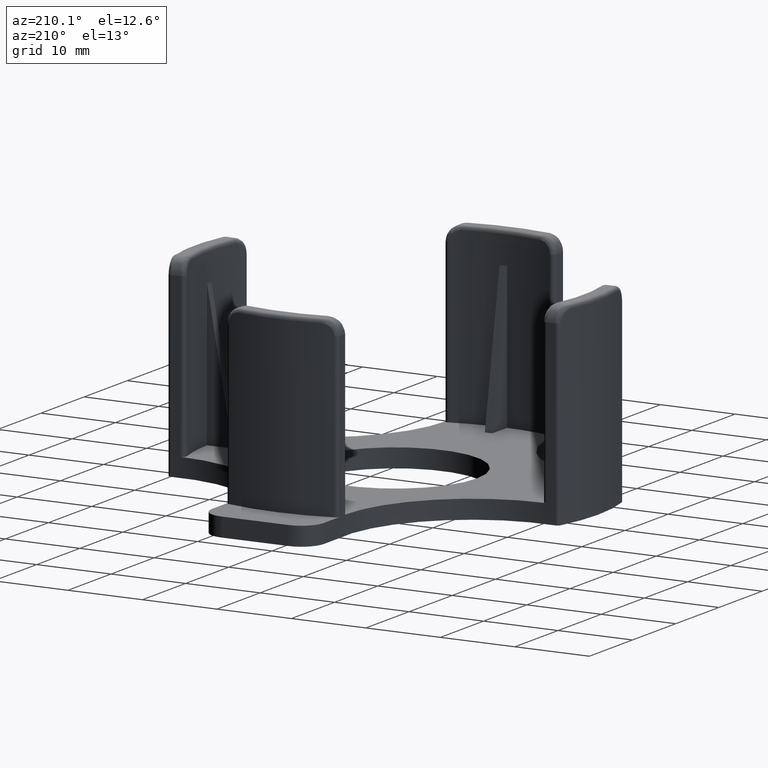
[diagram: clean part render]
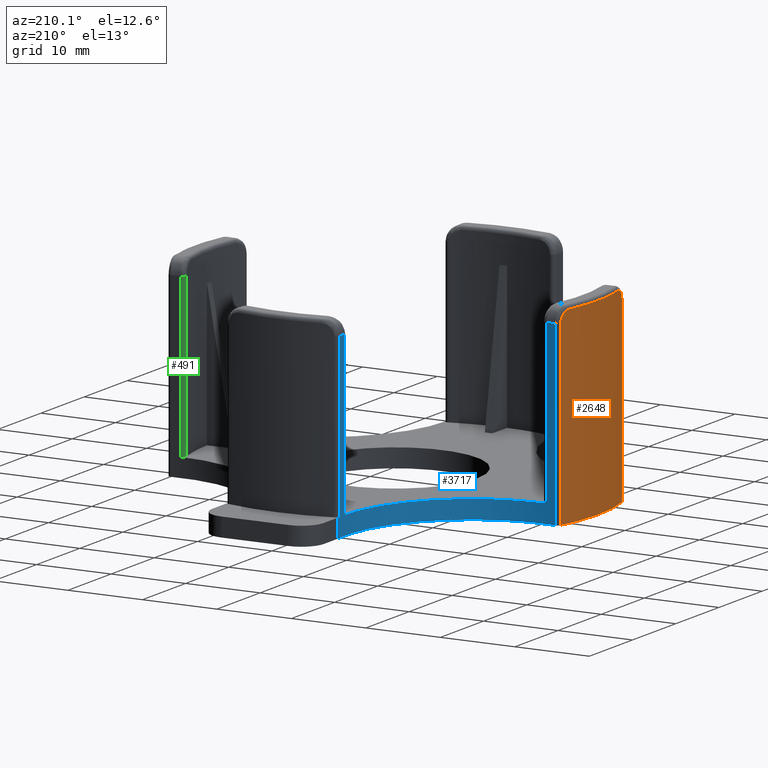
[diagram: same view with three faces highlighted in distinct colors, each labeled with its STEP entity id]
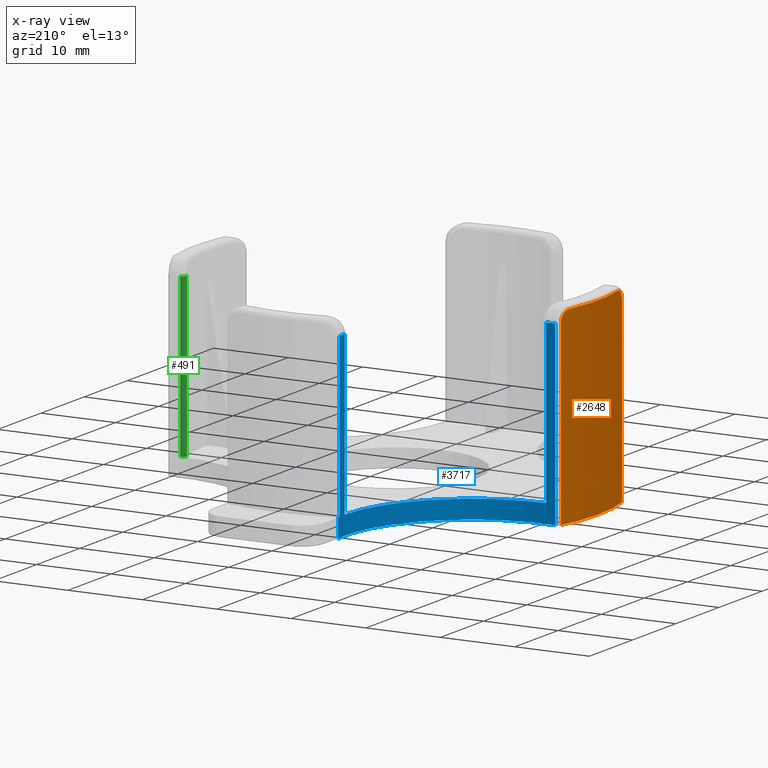
[diagram: x-ray of the same camera — body ghosted, the three highlighted faces saturated]
A machine part, auxiliary view with three faces highlighted in distinct colors.
The next image is the same camera in x-ray (body ghosted, the three faces saturated) — at least one of them is partly hidden behind the body in this view.
Their STEP definitions:

[orange] entity #2648 — the highlighted cylindrical surface (partial cylindrical patch) has radius 27.25 mm, axis along (0, 0, 1).
#2284=CARTESIAN_POINT('',(-25.034485118220694,6.316336291562118,0.0));
#2285=VERTEX_POINT('',#2284);
#2293=CARTESIAN_POINT('',(-25.034485118220697,6.316336291562119,24.0));
#2294=VERTEX_POINT('',#2293);
#2295=CARTESIAN_POINT('',(-25.034485118220694,6.316336291562118,0.0));
#2296=DIRECTION('',(0.0,0.0,1.0));
#2297=VECTOR('',#2296,24.0);
#2298=LINE('',#2295,#2297);
#2299=EDGE_CURVE('',#2285,#2294,#2298,.T.);
#2400=CARTESIAN_POINT('',(-25.394162277784638,4.814008367155919,25.500000000000004));
#2401=VERTEX_POINT('',#2400);
#2425=CARTESIAN_POINT('',(-25.034485118220694,6.316336291562123,23.999999999999996));
#2426=CARTESIAN_POINT('',(-25.034485118220694,6.316336291562123,24.112209397989020));
#2427=CARTESIAN_POINT('',(-25.041522709501734,6.290287621658274,24.339878930385279));
#2428=CARTESIAN_POINT('',(-25.071552773464841,6.177942221872051,24.659160876957348));
#2429=CARTESIAN_POINT('',(-25.119169920852485,5.995571546747986,24.947281654741627));
#2430=CARTESIAN_POINT('',(-25.179599908295000,5.756239779129834,25.184899007264541));
#2431=CARTESIAN_POINT('',(-25.249311720434683,5.467806222223368,25.364791332400660));
#2432=CARTESIAN_POINT('',(-25.322175702027735,5.150180037623207,25.474649695192721));
#2433=CARTESIAN_POINT('',(-25.370709484730572,4.925883315853772,25.499999999995680));
#2434=CARTESIAN_POINT('',(-25.394162277784634,4.814008367155921,25.500000000000000));
#2435=B_SPLINE_CURVE_WITH_KNOTS('',3,(#2425,#2426,#2427,#2428,#2429,#2430,#2431,#2432,#2433,#2434),.UNSPECIFIED.,.F.,.U.,(4,1,1,1,1,1,1,4),(2.017094E-017,0.033662819396707,0.067325638793413,0.100988458190120,0.134651277586826,0.168314096983533,0.201976916380239,0.235639735776946),.UNSPECIFIED.);
#2436=EDGE_CURVE('',#2294,#2401,#2435,.T.);
#2446=CARTESIAN_POINT('',(-25.394162277796866,-6.367982186866696,25.500000000000004));
#2447=VERTEX_POINT('',#2446);
#2465=CARTESIAN_POINT('',(1.276107158651716,-0.776986909884554,25.500000000000004));
#2466=DIRECTION('',(0.0,0.0,1.0));
#2467=DIRECTION('',(-1.0,0.0,0.0));
#2468=AXIS2_PLACEMENT_3D('',#2465,#2466,#2467);
#2469=CIRCLE('',#2468,27.249999999999996);
#2470=EDGE_CURVE('',#2401,#2447,#2469,.T.);
#2556=CARTESIAN_POINT('',(-25.034485118220687,-7.870310111331231,24.0));
#2557=VERTEX_POINT('',#2556);
#2581=CARTESIAN_POINT('',(-25.394162277796866,-6.367982186866694,25.500000000000000));
#2582=CARTESIAN_POINT('',(-25.370712407762316,-6.479843192123839,25.500000000000000));
#2583=CARTESIAN_POINT('',(-25.321645556627235,-6.706607805765819,25.474348574662237));
#2584=CARTESIAN_POINT('',(-25.266930276704034,-6.944933527286731,25.391152645272570));
#2585=CARTESIAN_POINT('',(-25.195928554085356,-7.244719011681582,25.236811641232805));
#2586=CARTESIAN_POINT('',(-25.130480090809680,-7.506350013880069,25.017031491378734));
#2587=CARTESIAN_POINT('',(-25.071224943029478,-7.733138422592125,24.656364525118793));
#2588=CARTESIAN_POINT('',(-25.041392522118763,-7.844778228610619,24.337335169662762));
#2589=CARTESIAN_POINT('',(-25.034485118220694,-7.870310111331234,24.112195412864455));
#2590=CARTESIAN_POINT('',(-25.034485118220694,-7.870310111331234,24.0));
#2591=B_SPLINE_CURVE_WITH_KNOTS('',3,(#2581,#2582,#2583,#2584,#2585,#2586,#2587,#2588,#2589,#2590),.UNSPECIFIED.,.F.,.U.,(4,1,1,1,1,1,1,4),(2.417280E-016,0.033658623859337,0.067317247718674,0.075731903683508,0.134634495437348,0.168293119296685,0.201951743156022,0.235610367015359),.UNSPECIFIED.);
#2592=EDGE_CURVE('',#2447,#2557,#2591,.T.);
#2602=CARTESIAN_POINT('',(-25.034485118220697,-7.870310111331222,0.0));
#2603=VERTEX_POINT('',#2602);
#2620=CARTESIAN_POINT('',(-25.034485118220687,-7.870310111331231,24.0));
#2621=DIRECTION('',(0.0,0.0,-1.0));
#2622=VECTOR('',#2621,24.0);
#2623=LINE('',#2620,#2622);
#2624=EDGE_CURVE('',#2557,#2603,#2623,.T.);
#2629=CARTESIAN_POINT('',(1.276107158651716,-0.776986909884554,0.0));
#2630=DIRECTION('',(0.0,0.0,1.0));
#2631=DIRECTION('',(-0.961378593794354,0.275229357798165,0.0));
#2632=AXIS2_PLACEMENT_3D('',#2629,#2630,#2631);
#2633=CYLINDRICAL_SURFACE('',#2632,27.249999999999996);
#2634=ORIENTED_EDGE('',*,*,#2624,.F.);
#2635=ORIENTED_EDGE('',*,*,#2592,.F.);
#2636=ORIENTED_EDGE('',*,*,#2470,.F.);
#2637=ORIENTED_EDGE('',*,*,#2436,.F.);
#2638=ORIENTED_EDGE('',*,*,#2299,.F.);
#2639=CARTESIAN_POINT('',(1.276107158651716,-0.776986909884554,0.0));
#2640=DIRECTION('',(0.0,0.0,1.0));
#2641=DIRECTION('',(-0.961378593794354,0.275229357798165,0.0));
#2642=AXIS2_PLACEMENT_3D('',#2639,#2640,#2641);
#2643=CIRCLE('',#2642,27.249999999999996);
#2644=EDGE_CURVE('',#2285,#2603,#2643,.T.);
#2645=ORIENTED_EDGE('',*,*,#2644,.T.);
#2646=EDGE_LOOP('',(#2634,#2635,#2636,#2637,#2638,#2645));
#2647=FACE_OUTER_BOUND('',#2646,.T.);
#2648=ADVANCED_FACE('',(#2647),#2633,.T.);

[blue] entity #3717 — the highlighted cylindrical surface (partial cylindrical patch) has radius 17 mm, axis along (0, 0, 1).
#1209=CARTESIAN_POINT('',(-6.185408569184700,25.010197204950252,24.0));
#1210=VERTEX_POINT('',#1209);
#1255=CARTESIAN_POINT('',(-6.185408569184698,25.010197204950259,2.500000000000000));
#1256=VERTEX_POINT('',#1255);
#1266=CARTESIAN_POINT('',(-6.185408569184698,25.010197204950259,2.500000000000000));
#1267=DIRECTION('',(0.0,0.0,1.0));
#1268=VECTOR('',#1267,21.500000000000000);
#1269=LINE('',#1266,#1268);
#1270=EDGE_CURVE('',#1256,#1210,#1269,.T.);
#2282=CARTESIAN_POINT('',(-24.511076956183082,6.684528817951858,0.0));
#2283=VERTEX_POINT('',#2282);
#2301=CARTESIAN_POINT('',(-24.511076956183082,6.684528817951858,24.0));
#2302=VERTEX_POINT('',#2301);
#2310=CARTESIAN_POINT('',(-24.511076956183082,6.684528817951858,24.0));
#2311=DIRECTION('',(0.0,0.0,-1.0));
#2312=VECTOR('',#2311,24.0);
#2313=LINE('',#2310,#2312);
#2314=EDGE_CURVE('',#2302,#2283,#2313,.T.);
#2667=CARTESIAN_POINT('',(-6.223892841348286,25.420579771011596,0.0));
#2668=VERTEX_POINT('',#2667);
#2669=CARTESIAN_POINT('',(-23.129146922384226,23.628267171151389,0.0));
#2670=DIRECTION('',(0.0,0.0,-1.000000000000000));
#2671=DIRECTION('',(0.105430152932953,0.994426710649173,0.0));
#2672=AXIS2_PLACEMENT_3D('',#2669,#2670,#2671);
#2673=CIRCLE('',#2672,17.0);
#2674=EDGE_CURVE('',#2668,#2283,#2673,.T.);
#2748=CARTESIAN_POINT('',(-6.129705276832307,23.766048662923886,24.0));
#2749=VERTEX_POINT('',#2748);
#2757=CARTESIAN_POINT('',(-6.129705276832304,23.766048662923886,2.500000000000000));
#2758=VERTEX_POINT('',#2757);
#2759=CARTESIAN_POINT('',(-6.129705276832307,23.766048662923886,24.0));
#2760=DIRECTION('',(0.0,0.0,-1.0));
#2761=VECTOR('',#2760,21.500000000000000);
#2762=LINE('',#2759,#2761);
#2763=EDGE_CURVE('',#2749,#2758,#2762,.T.);
#3370=CARTESIAN_POINT('',(-23.266928414156709,6.628825525599473,24.0));
#3371=VERTEX_POINT('',#3370);
#3594=CARTESIAN_POINT('',(-23.266928414156713,6.628825525599467,2.500000000000000));
#3595=VERTEX_POINT('',#3594);
#3603=CARTESIAN_POINT('',(-23.266928414156713,6.628825525599467,2.500000000000000));
#3604=DIRECTION('',(0.0,0.0,1.0));
#3605=VECTOR('',#3604,21.500000000000000);
#3606=LINE('',#3603,#3605);
#3607=EDGE_CURVE('',#3595,#3371,#3606,.T.);
#3665=CARTESIAN_POINT('',(-23.129146922384226,23.628267171151389,24.0));
#3666=DIRECTION('',(0.0,0.0,-1.000000000000000));
#3667=DIRECTION('',(-0.037221330350253,-0.999307046190988,0.0));
#3668=AXIS2_PLACEMENT_3D('',#3665,#3666,#3667);
#3669=CIRCLE('',#3668,17.0);
#3670=EDGE_CURVE('',#3371,#2302,#3669,.T.);
#3675=CARTESIAN_POINT('',(-23.129146922384226,23.628267171151389,0.0));
#3676=DIRECTION('',(0.0,0.0,1.0));
#3677=DIRECTION('',(0.105430152932953,0.994426710649173,0.0));
#3678=AXIS2_PLACEMENT_3D('',#3675,#3676,#3677);
#3679=CYLINDRICAL_SURFACE('',#3678,17.0);
#3680=CARTESIAN_POINT('',(-6.223892841348286,25.420579771011596,2.500000000000000));
#3681=VERTEX_POINT('',#3680);
#3682=CARTESIAN_POINT('',(-23.129146922384226,23.628267171151389,2.500000000000000));
#3683=DIRECTION('',(0.0,0.0,-1.000000000000000));
#3684=DIRECTION('',(0.105430152932953,0.994426710649173,0.0));
#3685=AXIS2_PLACEMENT_3D('',#3682,#3683,#3684);
#3686=CIRCLE('',#3685,17.0);
#3687=EDGE_CURVE('',#3681,#1256,#3686,.T.);
#3688=ORIENTED_EDGE('',*,*,#3687,.F.);
#3689=CARTESIAN_POINT('',(-6.223892841348286,25.420579771011596,0.0));
#3690=DIRECTION('',(0.0,0.0,1.0));
#3691=VECTOR('',#3690,2.500000000000000);
#3692=LINE('',#3689,#3691);
#3693=EDGE_CURVE('',#2668,#3681,#3692,.T.);
#3694=ORIENTED_EDGE('',*,*,#3693,.F.);
#3695=ORIENTED_EDGE('',*,*,#2674,.T.);
#3696=ORIENTED_EDGE('',*,*,#2314,.F.);
#3697=ORIENTED_EDGE('',*,*,#3670,.F.);
#3698=ORIENTED_EDGE('',*,*,#3607,.F.);
#3699=CARTESIAN_POINT('',(-23.129146922384226,23.628267171151389,2.500000000000000));
#3700=DIRECTION('',(0.0,0.0,1.000000000000000));
#3701=DIRECTION('',(0.105430152932953,0.994426710649173,0.0));
#3702=AXIS2_PLACEMENT_3D('',#3699,#3700,#3701);
#3703=CIRCLE('',#3702,17.0);
#3704=EDGE_CURVE('',#3595,#2758,#3703,.T.);
#3705=ORIENTED_EDGE('',*,*,#3704,.T.);
#3706=ORIENTED_EDGE('',*,*,#2763,.F.);
#3707=CARTESIAN_POINT('',(-23.129146922384226,23.628267171151389,24.0));
#3708=DIRECTION('',(0.0,0.0,-1.000000000000000));
#3709=DIRECTION('',(0.999307046190988,0.037221330350253,0.0));
#3710=AXIS2_PLACEMENT_3D('',#3707,#3708,#3709);
#3711=CIRCLE('',#3710,17.0);
#3712=EDGE_CURVE('',#1210,#2749,#3711,.T.);
#3713=ORIENTED_EDGE('',*,*,#3712,.F.);
#3714=ORIENTED_EDGE('',*,*,#1270,.F.);
#3715=EDGE_LOOP('',(#3688,#3694,#3695,#3696,#3697,#3698,#3705,#3706,#3713,#3714));
#3716=FACE_OUTER_BOUND('',#3715,.T.);
#3717=ADVANCED_FACE('',(#3716),#3679,.F.);

[green] entity #491 — the highlighted cylindrical surface (edge-blend (fillet) strip) has radius 0.5 mm, axis along (0, 0, 1).
#450=CARTESIAN_POINT('',(25.823195128276978,6.128841947789116,0.0));
#451=DIRECTION('',(0.0,0.0,1.0));
#452=DIRECTION('',(-0.799565459463388,0.600578950707649,0.0));
#453=AXIS2_PLACEMENT_3D('',#450,#451,#452);
#454=CYLINDRICAL_SURFACE('',#453,0.500000000000000);
#455=CARTESIAN_POINT('',(25.341879677892180,5.993433538815124,24.0));
#456=VERTEX_POINT('',#455);
#457=CARTESIAN_POINT('',(25.819142731460136,6.628825525599469,24.0));
#458=VERTEX_POINT('',#457);
#459=CARTESIAN_POINT('',(25.823195128276978,6.128841947789116,24.0));
#460=DIRECTION('',(0.0,0.0,-1.0));
#461=DIRECTION('',(-0.962630900769617,-0.270816817947991,0.0));
#462=AXIS2_PLACEMENT_3D('',#459,#460,#461);
#463=CIRCLE('',#462,0.499999999999989);
#464=EDGE_CURVE('',#456,#458,#463,.T.);
#465=ORIENTED_EDGE('',*,*,#464,.T.);
#466=CARTESIAN_POINT('',(25.819142731460140,6.628825525599467,2.500000000000000));
#467=VERTEX_POINT('',#466);
#468=CARTESIAN_POINT('',(25.819142731460136,6.628825525599469,24.0));
#469=DIRECTION('',(0.0,0.0,-1.0));
#470=VECTOR('',#469,21.500000000000000);
#471=LINE('',#468,#470);
#472=EDGE_CURVE('',#458,#467,#471,.T.);
#473=ORIENTED_EDGE('',*,*,#472,.T.);
#474=CARTESIAN_POINT('',(25.341879677892173,5.993433538815123,2.500000000000000));
#475=VERTEX_POINT('',#474);
#476=CARTESIAN_POINT('',(25.823195128276978,6.128841947789116,2.500000000000000));
#477=DIRECTION('',(0.0,0.0,-1.000000000000000));
#478=DIRECTION('',(-0.799565459463388,0.600578950707649,0.0));
#479=AXIS2_PLACEMENT_3D('',#476,#477,#478);
#480=CIRCLE('',#479,0.500000000000000);
#481=EDGE_CURVE('',#467,#475,#480,.F.);
#482=ORIENTED_EDGE('',*,*,#481,.T.);
#483=CARTESIAN_POINT('',(25.341879677892173,5.993433538815123,2.500000000000000));
#484=DIRECTION('',(0.0,0.0,1.0));
#485=VECTOR('',#484,21.500000000000000);
#486=LINE('',#483,#485);
#487=EDGE_CURVE('',#475,#456,#486,.T.);
#488=ORIENTED_EDGE('',*,*,#487,.T.);
#489=EDGE_LOOP('',(#465,#473,#482,#488));
#490=FACE_OUTER_BOUND('',#489,.T.);
#491=ADVANCED_FACE('',(#490),#454,.T.);